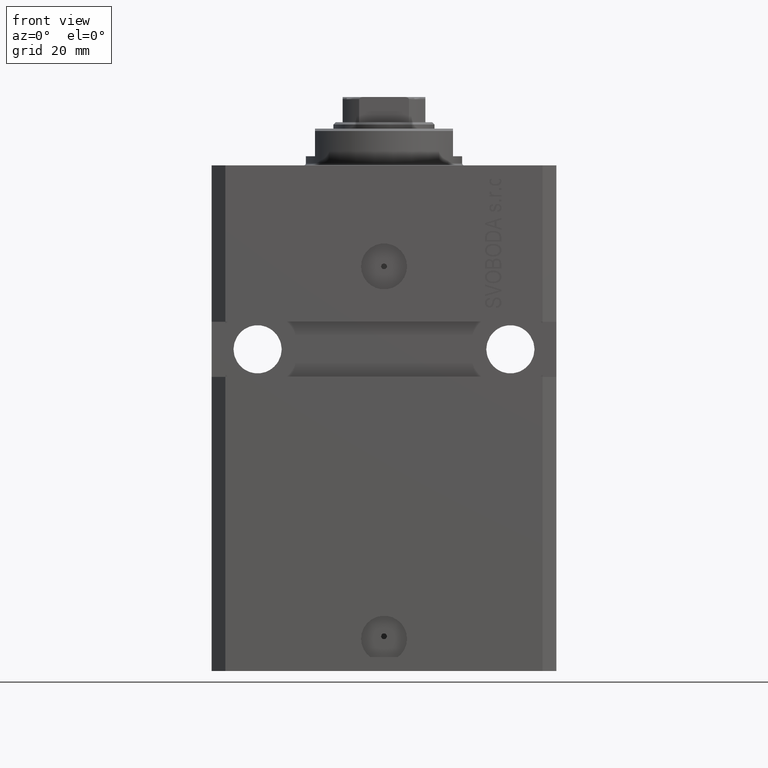
[diagram: clean part render]
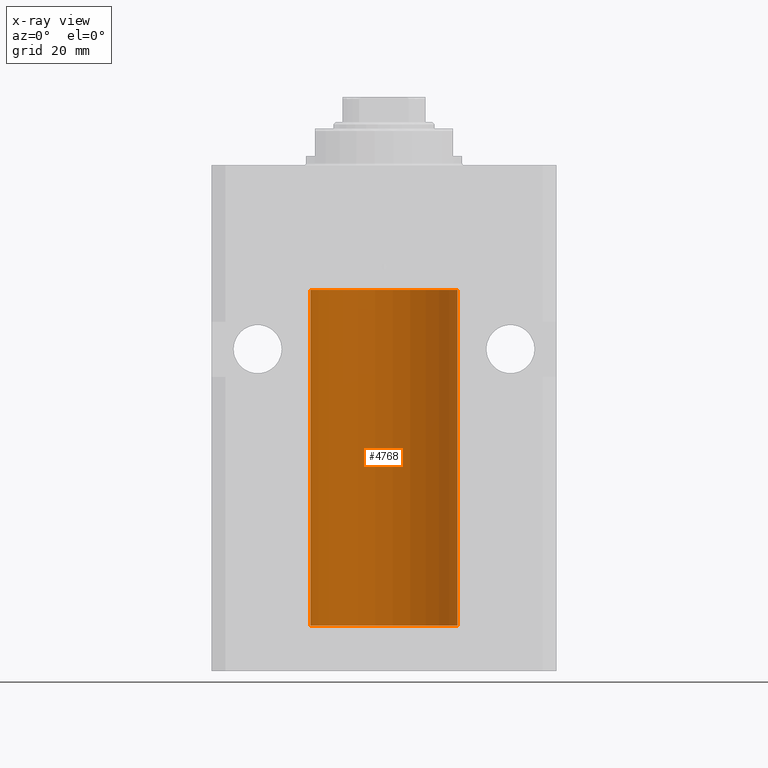
[diagram: x-ray — body ghosted, one internal face saturated and labeled with its STEP entity id]
A machine part, front view, then the same camera in x-ray: the body is ghosted and one INTERNAL B-rep face — a face not visible from any outside direction — is saturated and labeled: STEP entity #4768.
In plain terms, the highlighted cylindrical surface (partial cylindrical patch) has radius 16 mm, axis along (0, 0, 1).
Its self-contained STEP definition (entity closure, byte-faithful):
#1062 = EDGE_LOOP ( 'NONE', ( #37208, #12714, #16057, #41387, #25225, #19405, #15790 ) ) ;
#1549 = EDGE_CURVE ( 'NONE', #23552, #31510, #3948, .T. ) ;
#1783 = VECTOR ( 'NONE', #18895, 1000.000000000000000 ) ;
#1811 = EDGE_CURVE ( 'NONE', #36191, #29704, #35401, .T. ) ;
#2651 = VERTEX_POINT ( 'NONE', #34002 ) ;
#2950 = CARTESIAN_POINT ( 'NONE',  ( -16.00000000000000000, 1.959434878635765131E-15, -100.0999999999999943 ) ) ;
#3948 = LINE ( 'NONE', #32848, #1783 ) ;
#4476 = EDGE_CURVE ( 'NONE', #21553, #29704, #28414, .T. ) ;
#4604 = CARTESIAN_POINT ( 'NONE',  ( 16.00000000000000000, -1.835653844722709729E-15, -98.62500000000000000 ) ) ;
#4768 = ADVANCED_FACE ( 'NONE', ( #34047 ), #30039, .F. ) ;
#4898 = DIRECTION ( 'NONE',  ( 1.000000000000000000, 0.000000000000000000, 0.000000000000000000 ) ) ;
#4990 = CARTESIAN_POINT ( 'NONE',  ( 15.99548458234361448, 0.3844468804816183471, -98.49947786696355934 ) ) ;
#5390 = VERTEX_POINT ( 'NONE', #29600 ) ;
#5418 = DIRECTION ( 'NONE',  ( 0.000000000000000000, 0.000000000000000000, 1.000000000000000000 ) ) ;
#6815 = CARTESIAN_POINT ( 'NONE',  ( 15.99070366873610283, 0.5574063959867601170, -98.32639436837558833 ) ) ;
#8454 = CARTESIAN_POINT ( 'NONE',  ( 0.000000000000000000, 0.000000000000000000, -100.0999999999999943 ) ) ;
#8603 = AXIS2_PLACEMENT_3D ( 'NONE', #21852, #46237, #32267 ) ;
#9093 = CARTESIAN_POINT ( 'NONE',  ( 16.00000000000013145, 3.665532692826917502E-13, -97.37499999999657518 ) ) ;
#11126 = B_SPLINE_CURVE_WITH_KNOTS ( 'NONE', 3,
 ( #19779, #13110, #30652, #12646, #27604, #41548, #24273, #9093 ),
 .UNSPECIFIED., .F., .F.,
 ( 4, 2, 2, 4 ),
 ( 0.0009773326288700682433, 0.001221554802188685399, 0.001465776975507302772, 0.001954221322144537518 ),
 .UNSPECIFIED. ) ;
#11180 = CARTESIAN_POINT ( 'NONE',  ( 16.00000000000000000, 0.000000000000000000, -27.10000000000000142 ) ) ;
#12646 = CARTESIAN_POINT ( 'NONE',  ( 15.99070695999103542, 0.5461439696927204990, -97.68526802364048933 ) ) ;
#12714 = ORIENTED_EDGE ( 'NONE', *, *, #27061, .F. ) ;
#13110 = CARTESIAN_POINT ( 'NONE',  ( 15.98778830858103817, 0.6249999999997223332, -97.91847885046210820 ) ) ;
#13943 = CARTESIAN_POINT ( 'NONE',  ( -16.00000000000000000, 1.959434878635765131E-15, -27.10000000000000142 ) ) ;
#15766 = VECTOR ( 'NONE', #43828, 1000.000000000000000 ) ;
#15790 = ORIENTED_EDGE ( 'NONE', *, *, #4476, .T. ) ;
#16057 = ORIENTED_EDGE ( 'NONE', *, *, #1549, .T. ) ;
#17083 = EDGE_CURVE ( 'NONE', #5390, #21553, #26092, .T. ) ;
#18571 = AXIS2_PLACEMENT_3D ( 'NONE', #8454, #22931, #4898 ) ;
#18895 = DIRECTION ( 'NONE',  ( -0.000000000000000000, -0.000000000000000000, 1.000000000000000000 ) ) ;
#19247 = CARTESIAN_POINT ( 'NONE',  ( 16.00000000000000000, -1.835653844722709729E-15, -98.62500000000000000 ) ) ;
#19405 = ORIENTED_EDGE ( 'NONE', *, *, #17083, .T. ) ;
#19779 = CARTESIAN_POINT ( 'NONE',  ( 15.98778830858070954, 0.6250000000080517815, -97.99999999999916156 ) ) ;
#21282 = CARTESIAN_POINT ( 'NONE',  ( 15.98778830858070954, 0.6250000000080517815, -97.99999999999916156 ) ) ;
#21553 = VERTEX_POINT ( 'NONE', #11180 ) ;
#21852 = CARTESIAN_POINT ( 'NONE',  ( 0.000000000000000000, 0.000000000000000000, -100.0999999999999943 ) ) ;
#22931 = DIRECTION ( 'NONE',  ( -0.000000000000000000, -0.000000000000000000, 1.000000000000000000 ) ) ;
#23552 = VERTEX_POINT ( 'NONE', #34612 ) ;
#23681 = DIRECTION ( 'NONE',  ( 1.000000000000000000, 0.000000000000000000, 0.000000000000000000 ) ) ;
#24273 = CARTESIAN_POINT ( 'NONE',  ( 15.99999999999999645, 0.1631343969470158417, -97.37500000000021316 ) ) ;
#25225 = ORIENTED_EDGE ( 'NONE', *, *, #30199, .T. ) ;
#26092 = LINE ( 'NONE', #40263, #15766 ) ;
#26601 = CARTESIAN_POINT ( 'NONE',  ( 15.99707608081895138, 0.3151028052310259620, -98.54594170697734512 ) ) ;
#27061 = EDGE_CURVE ( 'NONE', #23552, #36191, #41879, .T. ) ;
#27604 = CARTESIAN_POINT ( 'NONE',  ( 15.99228275317786441, 0.5002975944204781644, -97.61642014570176684 ) ) ;
#27857 = DIRECTION ( 'NONE',  ( -0.000000000000000000, -0.000000000000000000, 1.000000000000000000 ) ) ;
#28414 = CIRCLE ( 'NONE', #41957, 16.00000000000000000 ) ;
#29600 = CARTESIAN_POINT ( 'NONE',  ( 16.00000000000013145, 3.665532692826917502E-13, -97.37499999999657518 ) ) ;
#29704 = VERTEX_POINT ( 'NONE', #13943 ) ;
#30039 = CYLINDRICAL_SURFACE ( 'NONE', #18571, 16.00000000000000000 ) ;
#30127 = CARTESIAN_POINT ( 'NONE',  ( 16.00000000000001066, 0.08261762387943044628, -98.62500000000001421 ) ) ;
#30199 = EDGE_CURVE ( 'NONE', #2651, #5390, #11126, .T. ) ;
#30573 = CARTESIAN_POINT ( 'NONE',  ( 15.98778830858101685, 0.6250000000002223777, -98.16311639173024162 ) ) ;
#30652 = CARTESIAN_POINT ( 'NONE',  ( 15.98844460043491367, 0.6087869699337551399, -97.83657454967556077 ) ) ;
#31017 = EDGE_CURVE ( 'NONE', #31510, #2651, #31898, .T. ) ;
#31510 = VERTEX_POINT ( 'NONE', #4604 ) ;
#31898 = B_SPLINE_CURVE_WITH_KNOTS ( 'NONE', 3,
 ( #19247, #30127, #37437, #26601, #4990, #6815, #30573, #21282 ),
 .UNSPECIFIED., .F., .F.,
 ( 4, 2, 2, 4 ),
 ( 1.783888443149829469E-18, 0.0002443331572175257886, 0.0004886663144350497342, 0.0009773326288700682433 ),
 .UNSPECIFIED. ) ;
#32267 = DIRECTION ( 'NONE',  ( 1.000000000000000000, 0.000000000000000000, 0.000000000000000000 ) ) ;
#32848 = CARTESIAN_POINT ( 'NONE',  ( 16.00000000000000000, 0.000000000000000000, -100.0999999999999943 ) ) ;
#34002 = CARTESIAN_POINT ( 'NONE',  ( 15.98778830858070954, 0.6250000000080517815, -97.99999999999916156 ) ) ;
#34047 = FACE_OUTER_BOUND ( 'NONE', #1062, .T. ) ;
#34612 = CARTESIAN_POINT ( 'NONE',  ( 16.00000000000000000, 0.000000000000000000, -100.0999999999999943 ) ) ;
#35401 = LINE ( 'NONE', #2950, #44141 ) ;
#36191 = VERTEX_POINT ( 'NONE', #46730 ) ;
#37208 = ORIENTED_EDGE ( 'NONE', *, *, #1811, .F. ) ;
#37437 = CARTESIAN_POINT ( 'NONE',  ( 15.99934183755190986, 0.1636877470527013101, -98.60872690654072414 ) ) ;
#37635 = CARTESIAN_POINT ( 'NONE',  ( 0.000000000000000000, 0.000000000000000000, -27.10000000000000142 ) ) ;
#40263 = CARTESIAN_POINT ( 'NONE',  ( 16.00000000000000000, 0.000000000000000000, -100.0999999999999943 ) ) ;
#41387 = ORIENTED_EDGE ( 'NONE', *, *, #31017, .T. ) ;
#41548 = CARTESIAN_POINT ( 'NONE',  ( 15.99711856062700477, 0.3252985083514284281, -97.44140297987712529 ) ) ;
#41879 = CIRCLE ( 'NONE', #8603, 16.00000000000000000 ) ;
#41957 = AXIS2_PLACEMENT_3D ( 'NONE', #37635, #5418, #23681 ) ;
#43828 = DIRECTION ( 'NONE',  ( -0.000000000000000000, -0.000000000000000000, 1.000000000000000000 ) ) ;
#44141 = VECTOR ( 'NONE', #27857, 1000.000000000000000 ) ;
#46237 = DIRECTION ( 'NONE',  ( 0.000000000000000000, 0.000000000000000000, 1.000000000000000000 ) ) ;
#46730 = CARTESIAN_POINT ( 'NONE',  ( -16.00000000000000000, 1.959434878635765131E-15, -100.0999999999999943 ) ) ;